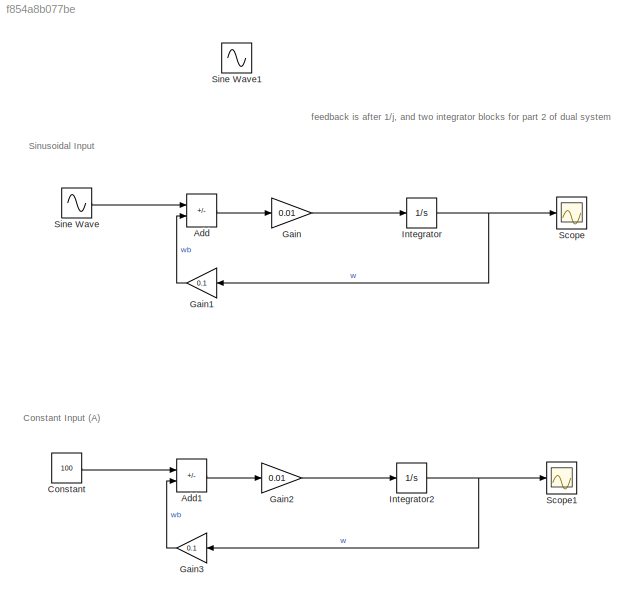
MODEL slx_f854a8b077be
KIND model
CONFIG AbsTol = auto
CONFIG EnableMultiTasking = off
CONFIG FixedStep = 1
CONFIG MaxStep = auto
CONFIG MinStep = auto
CONFIG RelTol = 1e-3
CONFIG SampleTimeConstraint = Unconstrained
CONFIG SolverName = ode23tb
CONFIG StartTime = 0.0
CONFIG StopTime = 25
BLOCK [Sum] Add
  IconShape = rectangular
  Inputs = +-
BLOCK [Sum] Add1
  IconShape = rectangular
  Inputs = +-
BLOCK [Constant] Constant
  Value = 100
BLOCK [Gain] Gain
  Gain = 0.01
BLOCK [Gain] Gain1
  Gain = 0.1
  NameLocation = top
BLOCK [Gain] Gain2
  Gain = 0.01
BLOCK [Gain] Gain3
  Gain = 0.1
  NameLocation = top
BLOCK [Integrator] Integrator
BLOCK [Integrator] Integrator2
  IgnoreLimit = on
BLOCK [Scope] Scope
  Floating = off
  NumInputPorts = 1
  ScopeSpecificationString = Simulink.scopes.TimeScopeBlockCfg('CurrentConfiguration', extmgr.ConfigurationSet(extmgr.Configuration('Core','General UI',true),extmgr.Configuration('Core','Source UI',true),extmgr.Configuration('Sources','WiredSimulink',true,'DataLogging',true,'DataLoggingSaveFormat','Array'),extmgr.Configuration('Visuals','Time Domain',true,'SerializedDisplays',{struct('MinYLimReal','-0.00003','MaxYLimReal','0....<+1492ch>
BLOCK [Scope] Scope1
  Floating = off
  NumInputPorts = 1
  ScopeSpecificationString = Simulink.scopes.TimeScopeBlockCfg('CurrentConfiguration', extmgr.ConfigurationSet(extmgr.Configuration('Core','General UI',true),extmgr.Configuration('Core','Source UI',true),extmgr.Configuration('Sources','WiredSimulink',true,'DataLogging',true,'DataLoggingSaveFormat','Array','DataLoggingVariableName','ScopeData1'),extmgr.Configuration('Visuals','Time Domain',true,'SerializedDisplays',{struct('Mi...<+1531ch>
BLOCK [Sin] Sine Wave
  Frequency = 100
  SampleTime = 0
BLOCK [Sin] Sine Wave1
  SampleTime = 0
ANNOTATION (root): Constant Input (A)
ANNOTATION (root): Sinusoidal Input
ANNOTATION (root): feedback is after 1/j, and two integrator blocks for part 2 of dual system
LINE Add1:1 -> Gain2:1
LINE Add:1 -> Gain:1
LINE Constant:1 -> Add1:1
LINE Gain1:1 -> Add:2
LINE Gain2:1 -> Integrator2:1
LINE Gain3:1 -> Add1:2
LINE Gain:1 -> Integrator:1
NET Integrator2:1 -> Gain3:1, Scope1:1
NET Integrator:1 -> Gain1:1, Scope:1
LINE Sine Wave:1 -> Add:1
note: NET lines group one-source signal fan-out (src -> all destinations, sorted); 1:1 wires keep LINE
